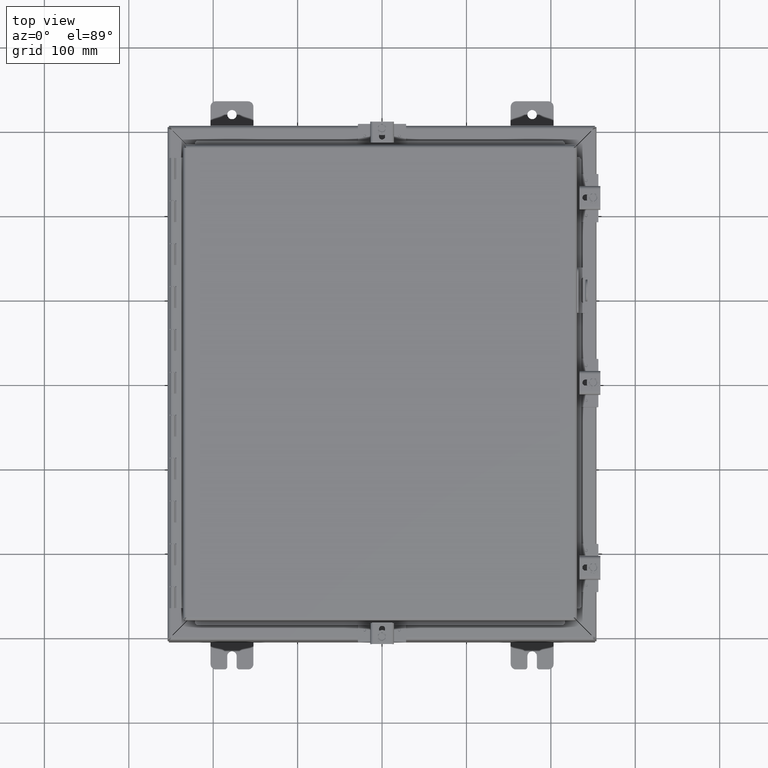
[diagram: clean part render]
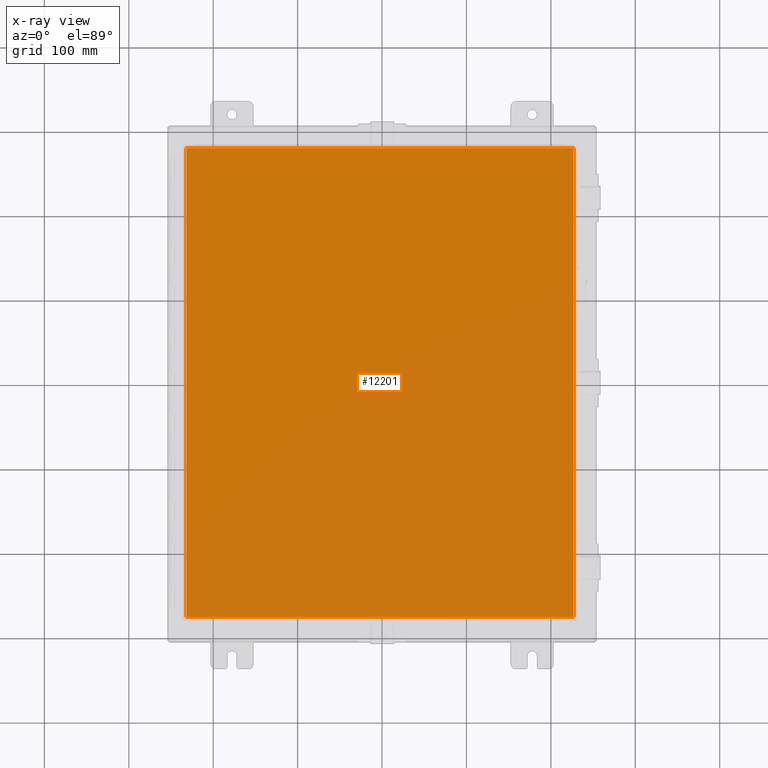
[diagram: x-ray — body ghosted, one internal face saturated and labeled with its STEP entity id]
A machine part, top view, then the same camera in x-ray: the body is ghosted and one INTERNAL B-rep face — a face not visible from any outside direction — is saturated and labeled: STEP entity #12201.
In plain terms, the highlighted planar face has unit normal (-0, -0, -1).
Its self-contained STEP definition (entity closure, byte-faithful):
#1324=PLANE('',#12956);
#1867=FACE_OUTER_BOUND('',#2575,.T.);
#2575=EDGE_LOOP('',(#9881,#9882,#9883,#9884));
#3434=LINE('',#20276,#4513);
#3440=LINE('',#20406,#4519);
#3444=LINE('',#20503,#4523);
#3458=LINE('',#20737,#4537);
#4513=VECTOR('',#14852,18.0695);
#4519=VECTOR('',#14862,21.882);
#4523=VECTOR('',#14874,18.0695);
#4537=VECTOR('',#14910,21.882);
#5945=VERTEX_POINT('',#20262);
#5946=VERTEX_POINT('',#20268);
#5952=VERTEX_POINT('',#20405);
#5956=VERTEX_POINT('',#20502);
#7342=EDGE_CURVE('',#5945,#5946,#3434,.T.);
#7356=EDGE_CURVE('',#5952,#5945,#3440,.T.);
#7367=EDGE_CURVE('',#5956,#5952,#3444,.T.);
#7390=EDGE_CURVE('',#5946,#5956,#3458,.T.);
#9881=ORIENTED_EDGE('',*,*,#7356,.T.);
#9882=ORIENTED_EDGE('',*,*,#7342,.T.);
#9883=ORIENTED_EDGE('',*,*,#7390,.T.);
#9884=ORIENTED_EDGE('',*,*,#7367,.T.);
#12201=ADVANCED_FACE('',(#1867),#1324,.T.);
#12956=AXIS2_PLACEMENT_3D('',#20760,#14914,#14915);
#14852=DIRECTION('',(1.,1.53516297137412E-16,0.));
#14862=DIRECTION('',(1.27840798168001E-16,-1.,0.));
#14874=DIRECTION('',(-1.,0.,0.));
#14910=DIRECTION('',(0.,1.,0.));
#14914=DIRECTION('center_axis',(0.,0.,1.));
#14915=DIRECTION('ref_axis',(1.,0.,0.));
#20262=CARTESIAN_POINT('',(-9.03475,-10.941,0.059));
#20268=CARTESIAN_POINT('',(9.03475,-10.941,0.059));
#20276=CARTESIAN_POINT('',(4.517375,-10.941,0.059));
#20405=CARTESIAN_POINT('',(-9.03475,10.941,0.059));
#20406=CARTESIAN_POINT('',(-9.03475,-5.4705,0.059));
#20502=CARTESIAN_POINT('',(9.03475,10.941,0.059));
#20503=CARTESIAN_POINT('',(-4.59375,10.941,0.059));
#20737=CARTESIAN_POINT('',(9.03475,5.4705,0.059));
#20760=CARTESIAN_POINT('Origin',(-1.04902962956708E-15,6.97442820908886E-16,
0.059));